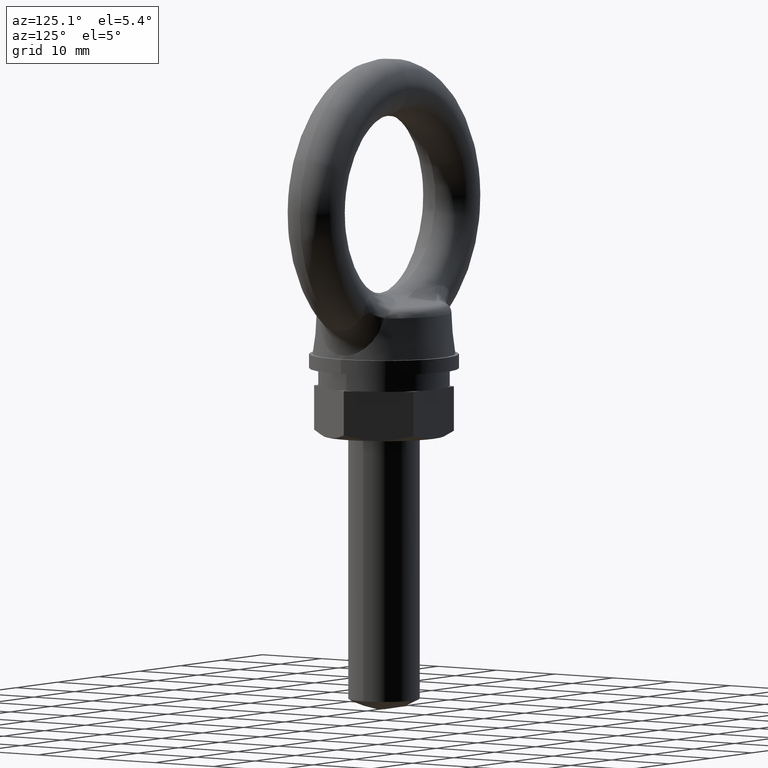
[diagram: clean part render]
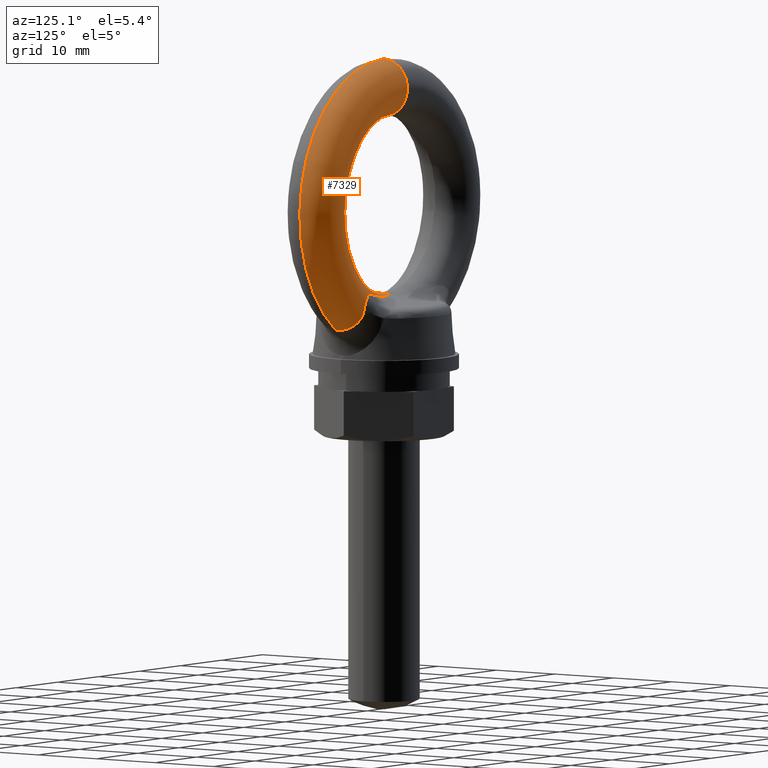
[diagram: same view with one face highlighted and labeled with its STEP entity id]
A machine part, auxiliary view. The second image highlights one B-rep face of the part: STEP entity #7329.
In plain terms, the highlighted toroidal blend (fillet) surface has major radius 16.5 mm and minor (blend) radius 4 mm.
Its self-contained STEP definition (entity closure, byte-faithful):
#3128 = DIRECTION ( 'NONE',  ( 0.0000000000000000000, 0.0000000000000000000, -1.000000000000000000 ) ) ;
#3129 = DIRECTION ( 'NONE',  ( 0.0000000000000000000, -1.000000000000000000, 0.0000000000000000000 ) ) ;
#3130 = CARTESIAN_POINT ( 'NONE',  ( 0.0000000000000000000, 4.898425415289509000E-016, 0.0000000000000000000 ) ) ;
#3131 = AXIS2_PLACEMENT_3D ( 'NONE', #3130, #3129, #3128 ) ;
#3132 = CIRCLE ( 'NONE', #3131, 12.50000000000000000 ) ;
#5947 = DIRECTION ( 'NONE',  ( 0.0000000000000000000, 0.0000000000000000000, -1.000000000000000000 ) ) ;
#5948 = DIRECTION ( 'NONE',  ( 0.0000000000000000000, -1.000000000000000000, 0.0000000000000000000 ) ) ;
#5949 = CARTESIAN_POINT ( 'NONE',  ( 0.0000000000000000000, 0.0000000000000000000, 0.0000000000000000000 ) ) ;
#5950 = AXIS2_PLACEMENT_3D ( 'NONE', #5949, #5948, #5947 ) ;
#5951 = CIRCLE ( 'NONE', #5950, 20.50000000000000000 ) ;
#5963 = CARTESIAN_POINT ( 'NONE',  ( 2.510443025335873400E-015, 0.0000000000000000000, 20.50000000000000000 ) ) ;
#6042 = CARTESIAN_POINT ( 'NONE',  ( 7.467880627820269600, 3.177411983194720500, -11.92478774879418100 ) ) ;
#6043 = CARTESIAN_POINT ( 'NONE',  ( 7.819693470380862300, 3.272561937105513700, -11.85127553392729500 ) ) ;
#6044 = CARTESIAN_POINT ( 'NONE',  ( 8.170083114881112600, 3.383184701333605400, -11.80235314141596300 ) ) ;
#6045 = CARTESIAN_POINT ( 'NONE',  ( 8.695333484958270600, 3.562554375078113500, -11.82466802386124400 ) ) ;
#6046 = CARTESIAN_POINT ( 'NONE',  ( 8.871490684972322100, 3.624855766044186000, -11.84906135502019700 ) ) ;
#6047 = CARTESIAN_POINT ( 'NONE',  ( 9.211872592812234500, 3.744371187428965400, -11.94566456662975900 ) ) ;
#6048 = CARTESIAN_POINT ( 'NONE',  ( 9.374443474979038600, 3.800879500088069700, -12.01751718833933000 ) ) ;
#6049 = CARTESIAN_POINT ( 'NONE',  ( 9.673667092116049900, 3.896741838874793600, -12.21311517874696100 ) ) ;
#6050 = CARTESIAN_POINT ( 'NONE',  ( 9.811294439948758500, 3.936136526383830600, -12.33845362442250800 ) ) ;
#6051 = CARTESIAN_POINT ( 'NONE',  ( 10.04427290204945000, 3.987707195086939800, -12.62728632119275800 ) ) ;
#6052 = CARTESIAN_POINT ( 'NONE',  ( 10.13794460739424100, 3.999920479011717300, -12.78624051028102900 ) ) ;
#6053 = CARTESIAN_POINT ( 'NONE',  ( 10.28783256958711200, 4.000078753457428200, -13.12816381761267900 ) ) ;
#6054 = CARTESIAN_POINT ( 'NONE',  ( 10.34179866062223000, 3.987777649902833200, -13.30735372179037200 ) ) ;
#6055 = CARTESIAN_POINT ( 'NONE',  ( 10.41281054562488800, 3.945210029772010500, -13.66506971429504000 ) ) ;
#6056 = CARTESIAN_POINT ( 'NONE',  ( 10.43069568632454000, 3.914880150612583000, -13.84590569122214800 ) ) ;
#6057 = CARTESIAN_POINT ( 'NONE',  ( 10.43268733045542100, 3.877413604260044900, -14.02865645472643900 ) ) ;
#6083 = CARTESIAN_POINT ( 'NONE',  ( 7.467880627820269600, 3.177411983194720500, -11.92478774879418100 ) ) ;
#6084 = B_SPLINE_CURVE_WITH_KNOTS ( 'NONE', 3,
 ( #6057, #6056, #6055, #6054, #6053, #6052, #6051, #6050, #6049, #6048, #6047, #6046, #6045, #6044, #6043, #6042 ),
 .UNSPECIFIED., .F., .F.,
 ( 4, 2, 2, 2, 2, 2, 2, 4 ),
 ( 0.0000000000000000000, 0.0005506281654855558700, 0.001101256330971111700, 0.001651884496456667600, 0.002202512661942223500, 0.002753140827427779300, 0.003303768992913335200, 0.004405025323884447000 ),
 .UNSPECIFIED. ) ;
#6085 = CARTESIAN_POINT ( 'NONE',  ( 1.530757942277971400E-015, 0.0000000000000000000, 12.50000000000000000 ) ) ;
#6087 = CARTESIAN_POINT ( 'NONE',  ( 10.43268733045542100, 3.877413604260044900, -14.02865645472643900 ) ) ;
#6188 = CARTESIAN_POINT ( 'NONE',  ( 10.43268733045542100, 3.877413604260044900, -14.02865645472643900 ) ) ;
#6189 = CARTESIAN_POINT ( 'NONE',  ( 10.43512833073318500, 3.831493829418950900, -14.25263957377864400 ) ) ;
#6190 = CARTESIAN_POINT ( 'NONE',  ( 10.45538312434290700, 3.769642908169118700, -14.47282916352848600 ) ) ;
#6191 = CARTESIAN_POINT ( 'NONE',  ( 10.53093981354513000, 3.607674165859228400, -14.89345384680518700 ) ) ;
#6192 = CARTESIAN_POINT ( 'NONE',  ( 10.58501042417164200, 3.509605501248137700, -15.08919766247702300 ) ) ;
#6193 = CARTESIAN_POINT ( 'NONE',  ( 10.71571964162091300, 3.276602941390821300, -15.45308340366726100 ) ) ;
#6194 = CARTESIAN_POINT ( 'NONE',  ( 10.79303833821526300, 3.140168226058776200, -15.62211158787230000 ) ) ;
#6195 = CARTESIAN_POINT ( 'NONE',  ( 10.95096572944683400, 2.842645967707622100, -15.92032543530144300 ) ) ;
#6196 = CARTESIAN_POINT ( 'NONE',  ( 11.03226769461791400, 2.680448513313148200, -16.05194163891196600 ) ) ;
#6197 = CARTESIAN_POINT ( 'NONE',  ( 11.18991545514856000, 2.329235969174305900, -16.28588359391605100 ) ) ;
#6198 = CARTESIAN_POINT ( 'NONE',  ( 11.26664855299514700, 2.138757008878930500, -16.38849511922224200 ) ) ;
#6199 = CARTESIAN_POINT ( 'NONE',  ( 11.40229897704888600, 1.745036253139454100, -16.56054895166969100 ) ) ;
#6200 = CARTESIAN_POINT ( 'NONE',  ( 11.46204194443548200, 1.540353998308939200, -16.63119779803789600 ) ) ;
#6201 = CARTESIAN_POINT ( 'NONE',  ( 11.56084793798950400, 1.115133617313793100, -16.74481670295696700 ) ) ;
#6207 = CARTESIAN_POINT ( 'NONE',  ( 1.593585985159962300, 1.389776511621657400, -12.65156922857541700 ) ) ;
#6208 = CARTESIAN_POINT ( 'NONE',  ( 2.528682672776903000, 1.676757055052370500, -12.62673140614984200 ) ) ;
#6209 = CARTESIAN_POINT ( 'NONE',  ( 3.148069537101431300, 1.875772282719821800, -12.58639663881572800 ) ) ;
#6210 = CARTESIAN_POINT ( 'NONE',  ( 5.005277452596188500, 2.461418736802242900, -12.39784555554043900 ) ) ;
#6211 = CARTESIAN_POINT ( 'NONE',  ( 6.233543521943151900, 2.843577897208044100, -12.18270571985227900 ) ) ;
#6212 = CARTESIAN_POINT ( 'NONE',  ( 7.467880627820269600, 3.177411983194720500, -11.92478774879418100 ) ) ;
#6213 = CIRCLE ( 'NONE', #6271, 4.000000000000000000 ) ;
#6214 = CARTESIAN_POINT ( 'NONE',  ( -4.377541674063780900E-013, 1.068570525734879200, -12.64537199829468900 ) ) ;
#6215 = B_SPLINE_CURVE_WITH_KNOTS ( 'NONE', 3,
 ( #6212, #6211, #6210, #6209, #6208, #6207, #6275, #6274, #6273, #6272 ),
 .UNSPECIFIED., .F., .F.,
 ( 4, 2, 2, 2, 4 ),
 ( 0.0000000000000000000, 0.003908837961975736100, 0.005863256942963603800, 0.006840466433457538000, 0.007817675923951472200 ),
 .UNSPECIFIED. ) ;
#6263 = DIRECTION ( 'NONE',  ( -1.224606353822377500E-016, 0.0000000000000000000, -1.000000000000000000 ) ) ;
#6264 = DIRECTION ( 'NONE',  ( 1.000000000000000000, 0.0000000000000000000, -1.224606353822377300E-016 ) ) ;
#6265 = CARTESIAN_POINT ( 'NONE',  ( 2.020600483806922500E-015, 0.0000000000000000000, 16.50000000000000000 ) ) ;
#6266 = AXIS2_PLACEMENT_3D ( 'NONE', #6265, #6264, #6263 ) ;
#6267 = CIRCLE ( 'NONE', #6266, 4.000000000000000000 ) ;
#6268 = DIRECTION ( 'NONE',  ( 0.0000000000000000000, 0.0000000000000000000, 1.000000000000000000 ) ) ;
#6269 = DIRECTION ( 'NONE',  ( -1.000000000000000000, 0.0000000000000000000, 0.0000000000000000000 ) ) ;
#6270 = CARTESIAN_POINT ( 'NONE',  ( 0.0000000000000000000, 0.0000000000000000000, -16.50000000000000000 ) ) ;
#6271 = AXIS2_PLACEMENT_3D ( 'NONE', #6270, #6269, #6268 ) ;
#6272 = CARTESIAN_POINT ( 'NONE',  ( -4.377541674063780900E-013, 1.068570525734879200, -12.64537199829468900 ) ) ;
#6273 = CARTESIAN_POINT ( 'NONE',  ( 0.3268158079321276100, 1.068570525734824400, -12.64537199829468500 ) ) ;
#6274 = CARTESIAN_POINT ( 'NONE',  ( 0.6489984404384978600, 1.134613044114469700, -12.65064654013974500 ) ) ;
#6275 = CARTESIAN_POINT ( 'NONE',  ( 1.281017108672212600, 1.295223943684878000, -12.65379115529197700 ) ) ;
#6276 = B_SPLINE_CURVE_WITH_KNOTS ( 'NONE', 3,
 ( #6281, #6280, #6279, #6278, #6201, #6200, #6199, #6198, #6197, #6196, #6195, #6194, #6193, #6192, #6191, #6190, #6189, #6188 ),
 .UNSPECIFIED., .F., .F.,
 ( 4, 2, 2, 2, 2, 2, 2, 2, 4 ),
 ( 0.005399195201900478800, 0.006074032370226007900, 0.006748869538551536900, 0.007423706706877066000, 0.008098543875202594100, 0.008773381043528124000, 0.009448218211853648800, 0.01012305538017917500, 0.01079789254850470000 ),
 .UNSPECIFIED. ) ;
#6278 = CARTESIAN_POINT ( 'NONE',  ( 11.59988919696608900, 0.8931911194612897100, -16.78770033408829200 ) ) ;
#6279 = CARTESIAN_POINT ( 'NONE',  ( 11.65149651876757100, 0.4492757659482777800, -16.84388619699042500 ) ) ;
#6280 = CARTESIAN_POINT ( 'NONE',  ( 11.66463721091608700, 0.2255363563936658700, -16.85782425871682500 ) ) ;
#6281 = CARTESIAN_POINT ( 'NONE',  ( 11.66463721091491700, -3.008164902650272100E-011, -16.85782425871557100 ) ) ;
#6282 = DIRECTION ( 'NONE',  ( 0.0000000000000000000, 0.0000000000000000000, -1.000000000000000000 ) ) ;
#6283 = DIRECTION ( 'NONE',  ( 0.0000000000000000000, -1.000000000000000000, 0.0000000000000000000 ) ) ;
#6284 = CARTESIAN_POINT ( 'NONE',  ( 0.0000000000000000000, 0.0000000000000000000, 0.0000000000000000000 ) ) ;
#6285 = AXIS2_PLACEMENT_3D ( 'NONE', #6284, #6283, #6282 ) ;
#6286 = TOROIDAL_SURFACE ( 'NONE', #6285, 16.50000000000000000, 4.000000000000000000 ) ;
#6287 = FACE_OUTER_BOUND ( 'NONE', #7330, .T. ) ;
#6386 = CARTESIAN_POINT ( 'NONE',  ( 0.0000000000000000000, 4.898425415289509000E-016, -12.50000000000000000 ) ) ;
#6404 = CARTESIAN_POINT ( 'NONE',  ( 11.66463721091491700, -3.008164902650272100E-011, -16.85782425871557100 ) ) ;
#7173 = EDGE_CURVE ( 'NONE', #7306, #7215, #3132, .T. ) ;
#7210 = VERTEX_POINT ( 'NONE', #6087 ) ;
#7211 = ORIENTED_EDGE ( 'NONE', *, *, #7212, .T. ) ;
#7212 = EDGE_CURVE ( 'NONE', #7210, #7213, #6084, .T. ) ;
#7213 = VERTEX_POINT ( 'NONE', #6083 ) ;
#7214 = ORIENTED_EDGE ( 'NONE', *, *, #7282, .T. ) ;
#7215 = VERTEX_POINT ( 'NONE', #6085 ) ;
#7220 = VERTEX_POINT ( 'NONE', #5963 ) ;
#7225 = EDGE_CURVE ( 'NONE', #7301, #7220, #5951, .T. ) ;
#7282 = EDGE_CURVE ( 'NONE', #7213, #7283, #6215, .T. ) ;
#7283 = VERTEX_POINT ( 'NONE', #6214 ) ;
#7284 = ORIENTED_EDGE ( 'NONE', *, *, #7285, .F. ) ;
#7285 = EDGE_CURVE ( 'NONE', #7306, #7283, #6213, .T. ) ;
#7286 = ORIENTED_EDGE ( 'NONE', *, *, #7173, .T. ) ;
#7287 = ORIENTED_EDGE ( 'NONE', *, *, #7288, .T. ) ;
#7288 = EDGE_CURVE ( 'NONE', #7215, #7220, #6267, .T. ) ;
#7301 = VERTEX_POINT ( 'NONE', #6404 ) ;
#7306 = VERTEX_POINT ( 'NONE', #6386 ) ;
#7329 = ADVANCED_FACE ( 'NONE', ( #6287 ), #6286, .T. ) ;
#7330 = EDGE_LOOP ( 'NONE', ( #7331, #7332, #7211, #7214, #7284, #7286, #7287 ) ) ;
#7331 = ORIENTED_EDGE ( 'NONE', *, *, #7225, .F. ) ;
#7332 = ORIENTED_EDGE ( 'NONE', *, *, #7333, .T. ) ;
#7333 = EDGE_CURVE ( 'NONE', #7301, #7210, #6276, .T. ) ;